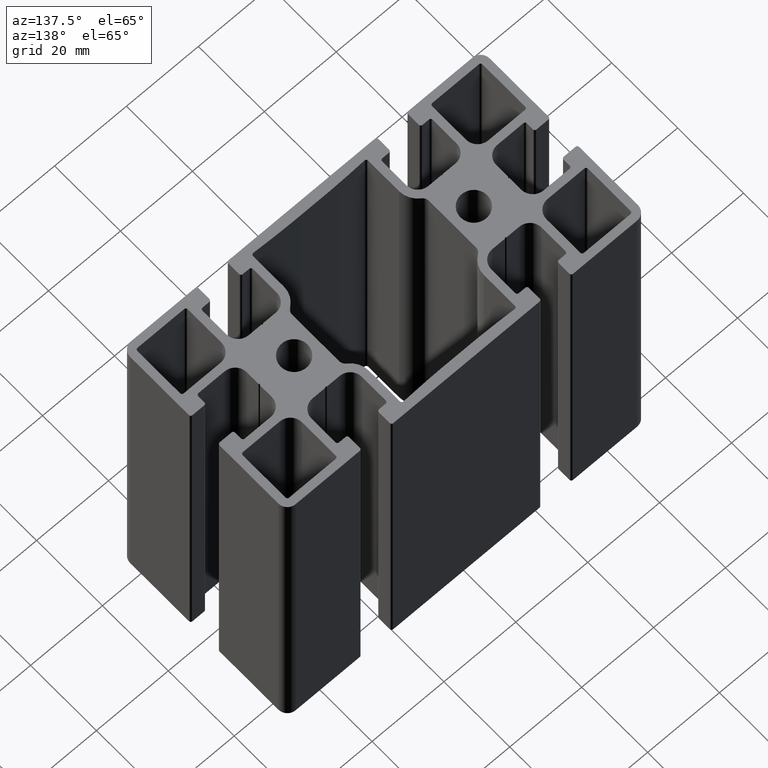
[diagram: clean part render]
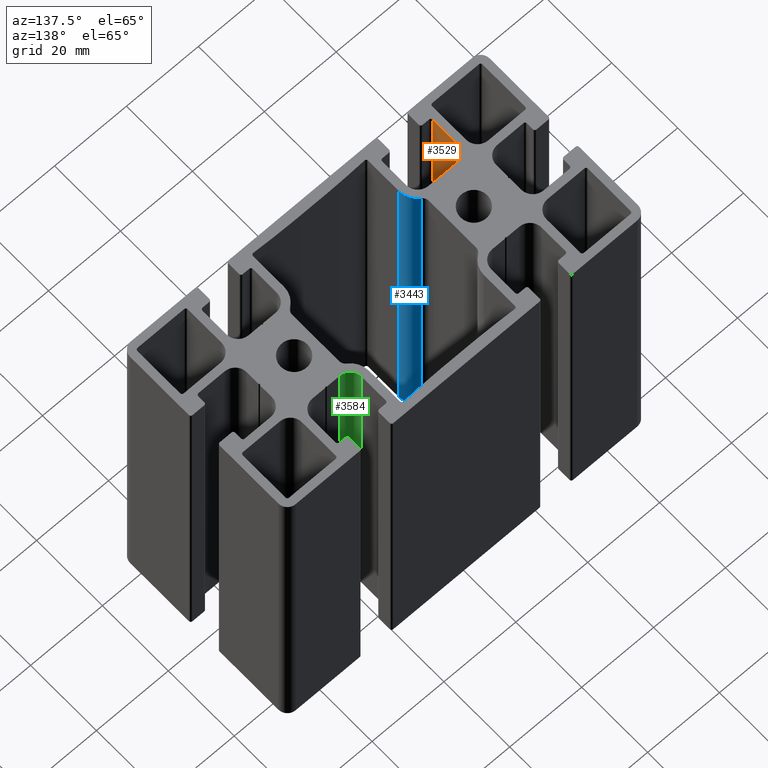
[diagram: same view with three faces highlighted in distinct colors, each labeled with its STEP entity id]
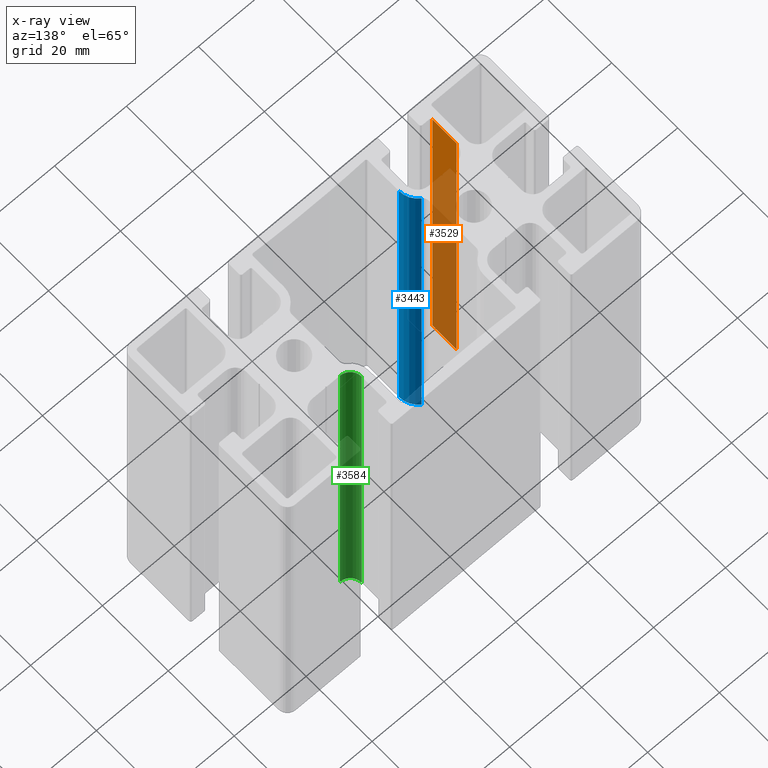
[diagram: x-ray of the same camera — body ghosted, the three highlighted faces saturated]
A machine part, auxiliary view with three faces highlighted in distinct colors.
The next image is the same camera in x-ray (body ghosted, the three faces saturated) — at least one of them is partly hidden behind the body in this view.
Their STEP definitions:

[orange] entity #3529 — the highlighted planar face has unit normal (1, 0, 0).
#387=FACE_OUTER_BOUND('',#569,.T.);
#569=EDGE_LOOP('',(#2661,#2662,#2663,#2664));
#853=LINE('',#5620,#1213);
#854=LINE('',#5623,#1214);
#855=LINE('',#5625,#1215);
#856=LINE('',#5626,#1216);
#1213=VECTOR('',#4559,100.);
#1214=VECTOR('',#4562,7.29999999999997);
#1215=VECTOR('',#4563,7.29999999999997);
#1216=VECTOR('',#4564,100.);
#1581=VERTEX_POINT('',#5616);
#1582=VERTEX_POINT('',#5618);
#1583=VERTEX_POINT('',#5622);
#1584=VERTEX_POINT('',#5624);
#2033=EDGE_CURVE('',#1581,#1582,#853,.T.);
#2034=EDGE_CURVE('',#1583,#1581,#854,.T.);
#2035=EDGE_CURVE('',#1584,#1582,#855,.T.);
#2036=EDGE_CURVE('',#1583,#1584,#856,.T.);
#2661=ORIENTED_EDGE('',*,*,#2034,.T.);
#2662=ORIENTED_EDGE('',*,*,#2033,.T.);
#2663=ORIENTED_EDGE('',*,*,#2035,.F.);
#2664=ORIENTED_EDGE('',*,*,#2036,.F.);
#3383=PLANE('',#3815);
#3529=ADVANCED_FACE('',(#387),#3383,.T.);
#3815=AXIS2_PLACEMENT_3D('',#5621,#4560,#4561);
#4559=DIRECTION('',(0.,0.,1.));
#4560=DIRECTION('center_axis',(1.,0.,0.));
#4561=DIRECTION('ref_axis',(0.,1.,0.));
#4562=DIRECTION('',(0.,1.,0.));
#4563=DIRECTION('',(0.,1.,0.));
#4564=DIRECTION('',(0.,0.,1.));
#5616=CARTESIAN_POINT('',(-32.0000000000056,-12.9000000000021,0.));
#5618=CARTESIAN_POINT('',(-32.0000000000056,-12.9000000000021,100.));
#5620=CARTESIAN_POINT('',(-32.0000000000056,-12.9000000000021,0.));
#5621=CARTESIAN_POINT('Origin',(-32.0000000000056,-20.2000000000021,0.));
#5622=CARTESIAN_POINT('',(-32.0000000000056,-20.2000000000021,0.));
#5623=CARTESIAN_POINT('',(-32.0000000000056,-20.2000000000021,0.));
#5624=CARTESIAN_POINT('',(-32.0000000000056,-20.2000000000021,100.));
#5625=CARTESIAN_POINT('',(-32.0000000000056,-20.2000000000021,100.));
#5626=CARTESIAN_POINT('',(-32.0000000000056,-20.2000000000021,0.));

[blue] entity #3443 — the highlighted cylindrical surface (edge-blend (fillet) strip) has radius 5.2 mm, axis along (0, 0, 1).
#47=CIRCLE('',#3642,5.19999999999982);
#48=CIRCLE('',#3643,5.19999999999982);
#211=CYLINDRICAL_SURFACE('',#3641,5.19999999999982);
#301=FACE_OUTER_BOUND('',#481,.T.);
#481=EDGE_LOOP('',(#2321,#2322,#2323,#2324));
#684=LINE('',#5105,#1044);
#686=LINE('',#5111,#1046);
#1044=VECTOR('',#4042,100.);
#1046=VECTOR('',#4048,100.);
#1409=VERTEX_POINT('',#5102);
#1410=VERTEX_POINT('',#5104);
#1411=VERTEX_POINT('',#5108);
#1412=VERTEX_POINT('',#5110);
#1776=EDGE_CURVE('',#1409,#1410,#684,.T.);
#1778=EDGE_CURVE('',#1411,#1409,#47,.T.);
#1779=EDGE_CURVE('',#1411,#1412,#686,.T.);
#1780=EDGE_CURVE('',#1410,#1412,#48,.T.);
#2321=ORIENTED_EDGE('',*,*,#1778,.F.);
#2322=ORIENTED_EDGE('',*,*,#1779,.T.);
#2323=ORIENTED_EDGE('',*,*,#1780,.F.);
#2324=ORIENTED_EDGE('',*,*,#1776,.F.);
#3443=ADVANCED_FACE('',(#301),#211,.T.);
#3641=AXIS2_PLACEMENT_3D('',#5107,#4044,#4045);
#3642=AXIS2_PLACEMENT_3D('',#5109,#4046,#4047);
#3643=AXIS2_PLACEMENT_3D('',#5112,#4049,#4050);
#4042=DIRECTION('',(0.,0.,1.));
#4044=DIRECTION('center_axis',(0.,0.,1.));
#4045=DIRECTION('ref_axis',(-1.,0.,0.));
#4046=DIRECTION('center_axis',(0.,0.,-1.));
#4047=DIRECTION('ref_axis',(-1.,0.,0.));
#4048=DIRECTION('',(0.,0.,1.));
#4049=DIRECTION('center_axis',(0.,0.,1.));
#4050=DIRECTION('ref_axis',(-1.,0.,0.));
#5102=CARTESIAN_POINT('',(-15.9999999999916,-12.9000000000128,0.));
#5104=CARTESIAN_POINT('',(-15.9999999999916,-12.9000000000128,100.));
#5105=CARTESIAN_POINT('',(-15.9999999999916,-12.9000000000128,0.));
#5107=CARTESIAN_POINT('Origin',(-21.1999999999914,-12.9000000000128,0.));
#5108=CARTESIAN_POINT('',(-18.2985507246242,-8.58472572107424,0.));
#5109=CARTESIAN_POINT('Origin',(-21.1999999999914,-12.9000000000128,0.));
#5110=CARTESIAN_POINT('',(-18.2985507246242,-8.58472572107424,100.));
#5111=CARTESIAN_POINT('',(-18.2985507246242,-8.58472572107424,0.));
#5112=CARTESIAN_POINT('Origin',(-21.1999999999914,-12.9000000000128,100.));

[green] entity #3584 — the highlighted cylindrical surface (edge-blend (fillet) strip) has radius 3.2 mm, axis along (0, 0, 1).
#183=CIRCLE('',#3919,3.19999999999997);
#184=CIRCLE('',#3920,3.19999999999997);
#279=CYLINDRICAL_SURFACE('',#3918,3.19999999999997);
#442=FACE_OUTER_BOUND('',#624,.T.);
#624=EDGE_LOOP('',(#2881,#2882,#2883,#2884));
#970=LINE('',#5950,#1330);
#971=LINE('',#5956,#1331);
#1330=VECTOR('',#4882,100.);
#1331=VECTOR('',#4889,100.);
#1691=VERTEX_POINT('',#5946);
#1692=VERTEX_POINT('',#5948);
#1693=VERTEX_POINT('',#5952);
#1694=VERTEX_POINT('',#5954);
#2198=EDGE_CURVE('',#1691,#1692,#970,.T.);
#2199=EDGE_CURVE('',#1693,#1691,#183,.T.);
#2200=EDGE_CURVE('',#1694,#1692,#184,.T.);
#2201=EDGE_CURVE('',#1693,#1694,#971,.T.);
#2881=ORIENTED_EDGE('',*,*,#2199,.T.);
#2882=ORIENTED_EDGE('',*,*,#2198,.T.);
#2883=ORIENTED_EDGE('',*,*,#2200,.F.);
#2884=ORIENTED_EDGE('',*,*,#2201,.F.);
#3584=ADVANCED_FACE('',(#442),#279,.F.);
#3918=AXIS2_PLACEMENT_3D('',#5951,#4883,#4884);
#3919=AXIS2_PLACEMENT_3D('',#5953,#4885,#4886);
#3920=AXIS2_PLACEMENT_3D('',#5955,#4887,#4888);
#4882=DIRECTION('',(0.,0.,1.));
#4883=DIRECTION('center_axis',(0.,0.,1.));
#4884=DIRECTION('ref_axis',(1.,0.,0.));
#4885=DIRECTION('center_axis',(0.,0.,-1.));
#4886=DIRECTION('ref_axis',(1.,0.,0.));
#4887=DIRECTION('center_axis',(0.,0.,-1.));
#4888=DIRECTION('ref_axis',(1.,0.,0.));
#4889=DIRECTION('',(0.,0.,1.));
#5946=CARTESIAN_POINT('',(18.0000000000015,12.900000000001,0.));
#5948=CARTESIAN_POINT('',(18.0000000000015,12.900000000001,100.));
#5950=CARTESIAN_POINT('',(18.0000000000015,12.900000000001,0.));
#5951=CARTESIAN_POINT('Origin',(21.2000000000014,12.900000000001,0.));
#5952=CARTESIAN_POINT('',(21.2000000000023,9.70000000000106,0.));
#5953=CARTESIAN_POINT('Origin',(21.2000000000014,12.900000000001,0.));
#5954=CARTESIAN_POINT('',(21.2000000000023,9.70000000000106,100.));
#5955=CARTESIAN_POINT('Origin',(21.2000000000014,12.900000000001,100.));
#5956=CARTESIAN_POINT('',(21.2000000000023,9.70000000000106,0.));